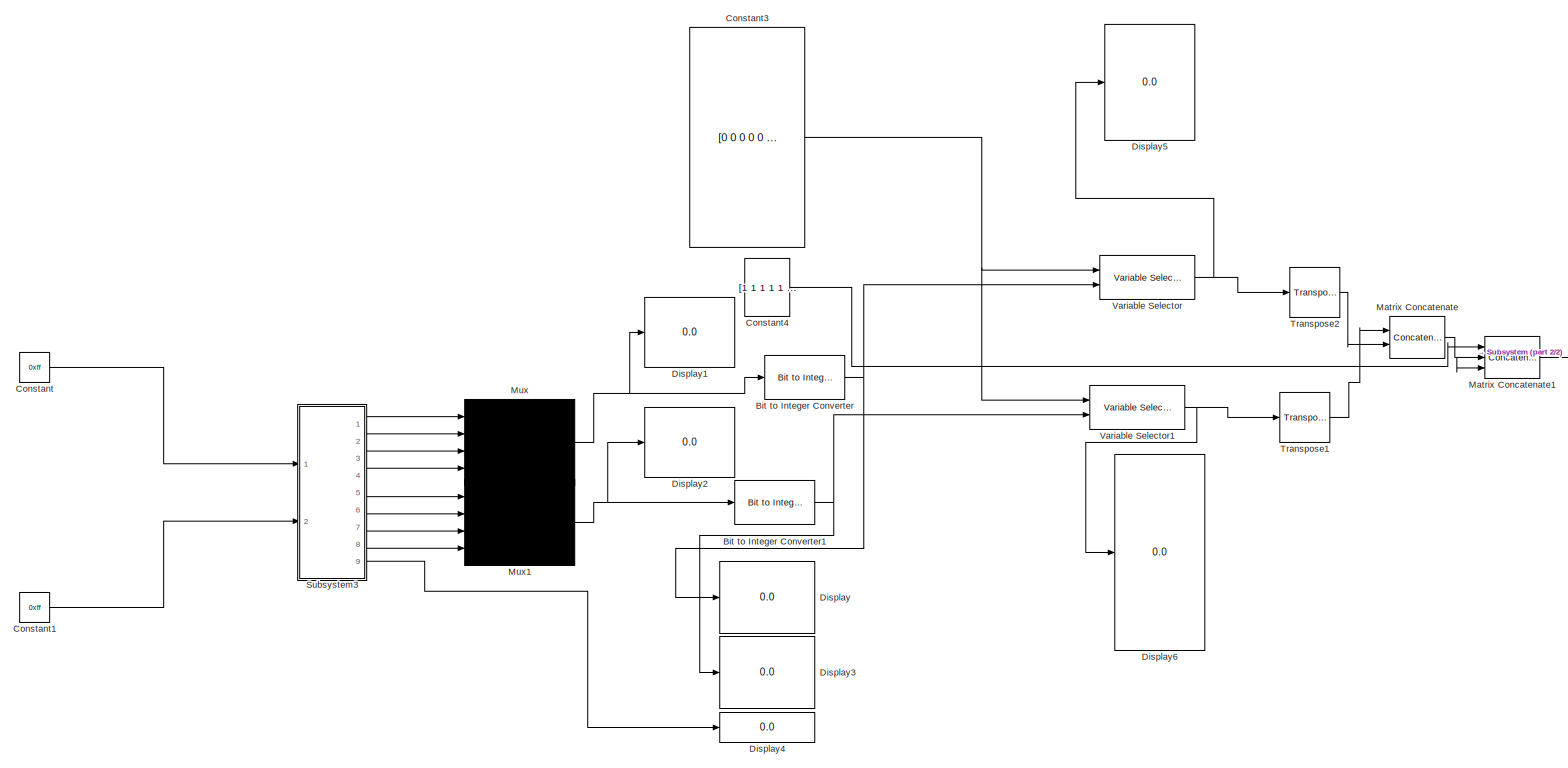
[diagram: root canvas - part 1/2, most of the canvas]
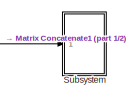
[diagram: root canvas - part 2/2, middle right region]
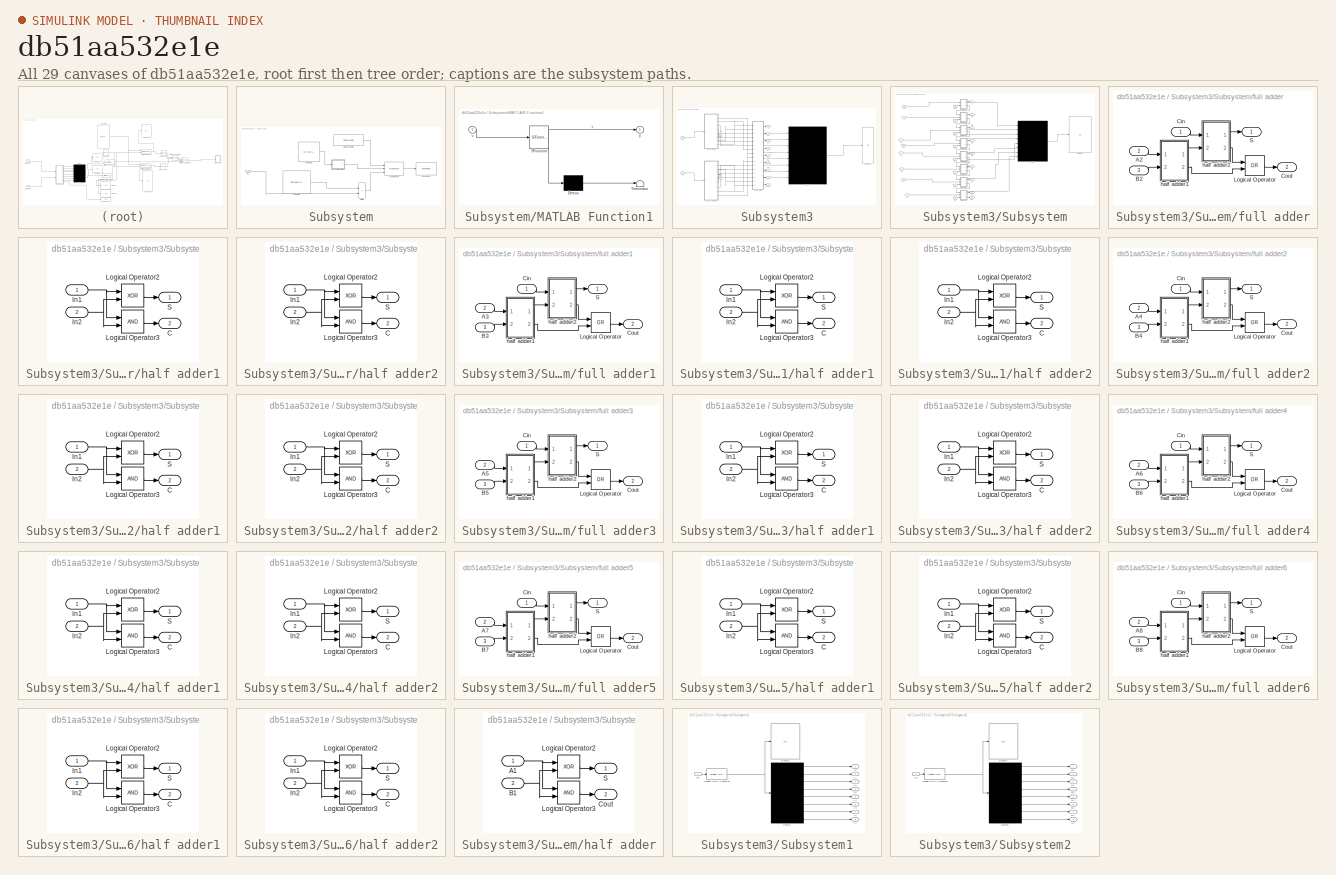
[diagram: thumbnail index - all 29 canvases of the model, root first then tree order]
MODEL slx_db51aa532e1e
KIND model
CONFIG AbsTol = auto
CONFIG EnableMultiTasking = off
CONFIG FixedStep = auto
CONFIG MaxStep = auto
CONFIG MinStep = auto
CONFIG RelTol = 1e-3
CONFIG SampleTimeConstraint = Unconstrained
CONFIG SolverName = VariableStepAuto
CONFIG StartTime = 0.0
CONFIG StopTime = 10.0
BLOCK [Reference] Bit to Integer Converter  REF=simulink/Logic and Bit
Operations/Bit to Integer
Converter
  Ports = [1, 1]
  SourceBlock = simulink/Logic and Bit\nOperations/Bit to Integer\nConverter
  SourceProductBaseCode = SL
  SourceType = Bit to Integer Converter
BLOCK [Reference] Bit to Integer Converter1  REF=simulink/Logic and Bit
Operations/Bit to Integer
Converter
  Ports = [1, 1]
  SourceBlock = simulink/Logic and Bit\nOperations/Bit to Integer\nConverter
  SourceProductBaseCode = SL
  SourceType = Bit to Integer Converter
BLOCK [Constant] Constant
  Value = 0xff
BLOCK [Constant] Constant1
  Value = 0xff
BLOCK [Constant] Constant3
  Value = [0 0 0 0 0 0 1;1 0 0 1 1 1 1;0 0 1 0 0 1 0;0 0 0 0 1 1 0;1 0 0 1 1 0 0;0 1 0 0 1 0 0 ;0 1 0 0 0 0 0;0 0 0 1 1 1 1;0 0 0 0 0 0 0;0 0 0 0 1 0 0;0 0 0 1 0 0 0;1 1 0 0 0 0 0;0 1 1 0 0 0 1;1 0 0 0 0 1 0;0 1 1 0 0 0 0;0 1 1 1 0 0 0]
BLOCK [Constant] Constant4
  Value = [1 1 1 1 1 1 1 1 1 1 1 1 1 1;]
BLOCK [Display] Display
  Decimation = 8
  Ports = [1]
BLOCK [Display] Display1
  Decimation = 1
  Ports = [1]
BLOCK [Display] Display2
  Decimation = 1
  Ports = [1]
BLOCK [Display] Display3
  Decimation = 8
  Ports = [1]
BLOCK [Display] Display4
  Decimation = 1
  Ports = [1]
BLOCK [Display] Display5
  Decimation = 1
  Ports = [1]
BLOCK [Display] Display6
  Decimation = 1
  Ports = [1]
BLOCK [Concatenate] Matrix Concatenate
  Mode = Multidimensional array
  Ports = [2, 1]
BLOCK [Concatenate] Matrix Concatenate1
  ConcatenateDimension = 2
  Mode = Multidimensional array
  NumInputs = 3
  Ports = [3, 1]
BLOCK [Mux] Mux
  DisplayOption = signals
  Ports = [4, 1]
BLOCK [Mux] Mux1
  DisplayOption = signals
  Ports = [4, 1]
BLOCK [SubSystem] Subsystem
  Ports = [1]
  RequestExecContextInheritance = off
BLOCK [Constant] Subsystem/Constant3
  Value = [10 0  30 10; 40 10 10 30; 40 50 10 30; 10 80 30 10;0 50 10 30; 0 10 10 30;10 40 30 10]
  VectorParams1D = off
BLOCK [Constant] Subsystem/Constant5
  Value = 255*ones(14,3)
BLOCK [Reference] Subsystem/Draw Shapes  REF=visiontextngfix/Draw Shapes
  Ports = [3, 1]
  SourceBlock = visiontextngfix/Draw Shapes
  SourceProductBaseCode = VP
  SourceType = Draw Shapes
BLOCK [Reference] Subsystem/Image From File  REF=visionsources/Image From File
  Ports = [0, 1]
  SourceBlock = visionsources/Image From File
  SourceProductBaseCode = VP
  SourceType = Image From File
  Tag = vipblks_nd
BLOCK [Inport] Subsystem/In1
BLOCK [SubSystem] Subsystem/MATLAB Function1
  ErrorFcn = Stateflow.Translate.translate
  PermitHierarchicalResolution = ExplicitOnly
  Ports = [1, 1]
  RequestExecContextInheritance = off
  SFBlockType = MATLAB Function
  TreatAsAtomicUnit = on
BLOCK [Demux] Subsystem/MATLAB Function1/ Demux 
  Outputs = 1
  Ports = [1, 1]
BLOCK [S-Function] Subsystem/MATLAB Function1/ SFunction 
  EnableBusSupport = on
  FunctionName = sf_sfun
  PortCounts = [1 2]
  Ports = [1, 2]
  SFcnIsStateOwnerBlock = off
  SFunctionDeploymentMode = off
  Tag = Stateflow S-Function 1
BLOCK [Terminator] Subsystem/MATLAB Function1/ Terminator 
BLOCK [Inport] Subsystem/MATLAB Function1/u
BLOCK [Outport] Subsystem/MATLAB Function1/y
BLOCK [Product] Subsystem/Multiply
  Ports = [2, 1]
BLOCK [VideoViewer] Subsystem/Video Viewer
  FigPos = [1 814 1536 716]
  Ports = [1]
  ScopeSpecificationString = vipscopes.VideoViewerScopeCfg('CurrentConfiguration', extmgr.ConfigurationSet(extmgr.Configuration('Core','General UI',true),extmgr.Configuration('Core','Source UI',true),extmgr.Configuration('Sources','WiredSimulink',true),extmgr.Configuration('Visuals','Video',true),extmgr.Configuration('Tools','Image Navigation Tools',true,'Magnification',4),extmgr.Configuration('Tools','Image Tool',true),extmg...<+91ch>
  colormapValue = gray(256)
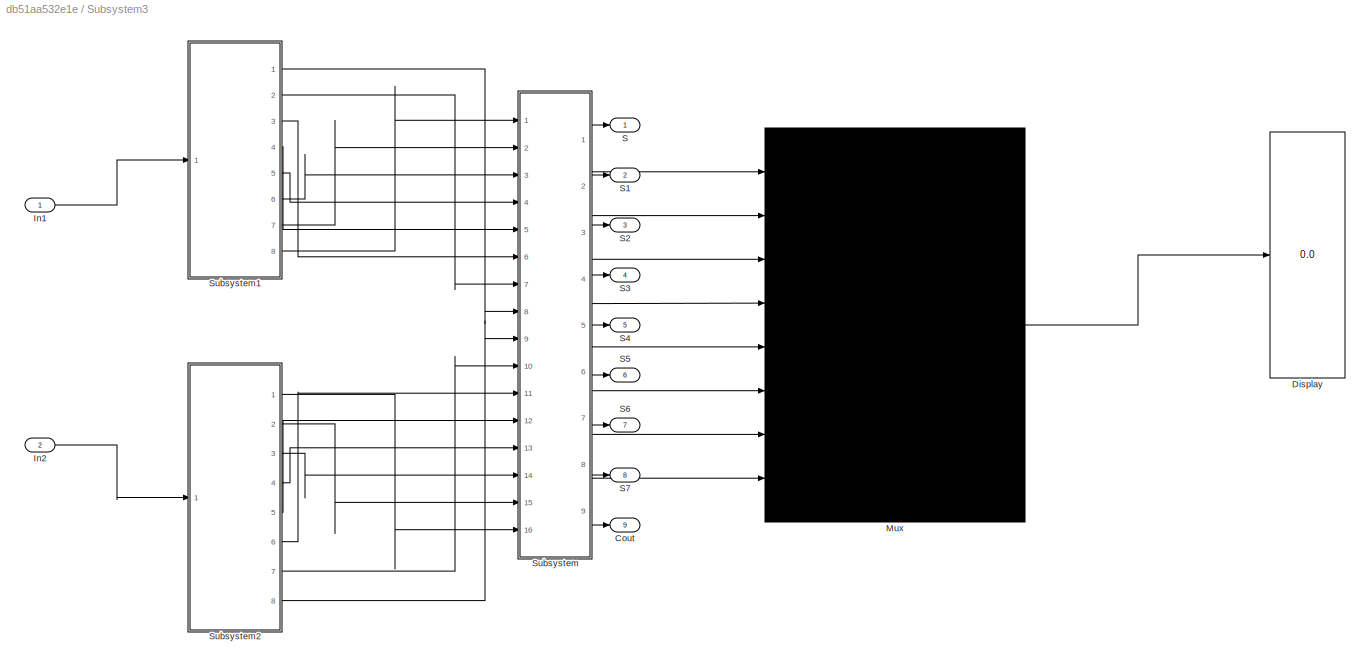
BLOCK [SubSystem] Subsystem3
  Ports = [2, 9]
  RequestExecContextInheritance = off
BLOCK [Outport] Subsystem3/Cout
  Port = 9
BLOCK [Display] Subsystem3/Display
  Decimation = 1
  Ports = [1]
BLOCK [Inport] Subsystem3/In1
BLOCK [Inport] Subsystem3/In2
  Port = 2
BLOCK [Mux] Subsystem3/Mux
  DisplayOption = bar
  Inputs = 8
  Ports = [8, 1]
BLOCK [Outport] Subsystem3/S
BLOCK [Outport] Subsystem3/S1
  Port = 2
BLOCK [Outport] Subsystem3/S2
  Port = 3
BLOCK [Outport] Subsystem3/S3
  Port = 4
BLOCK [Outport] Subsystem3/S4
  Port = 5
BLOCK [Outport] Subsystem3/S5
  Port = 6
BLOCK [Outport] Subsystem3/S6
  Port = 7
BLOCK [Outport] Subsystem3/S7
  Port = 8
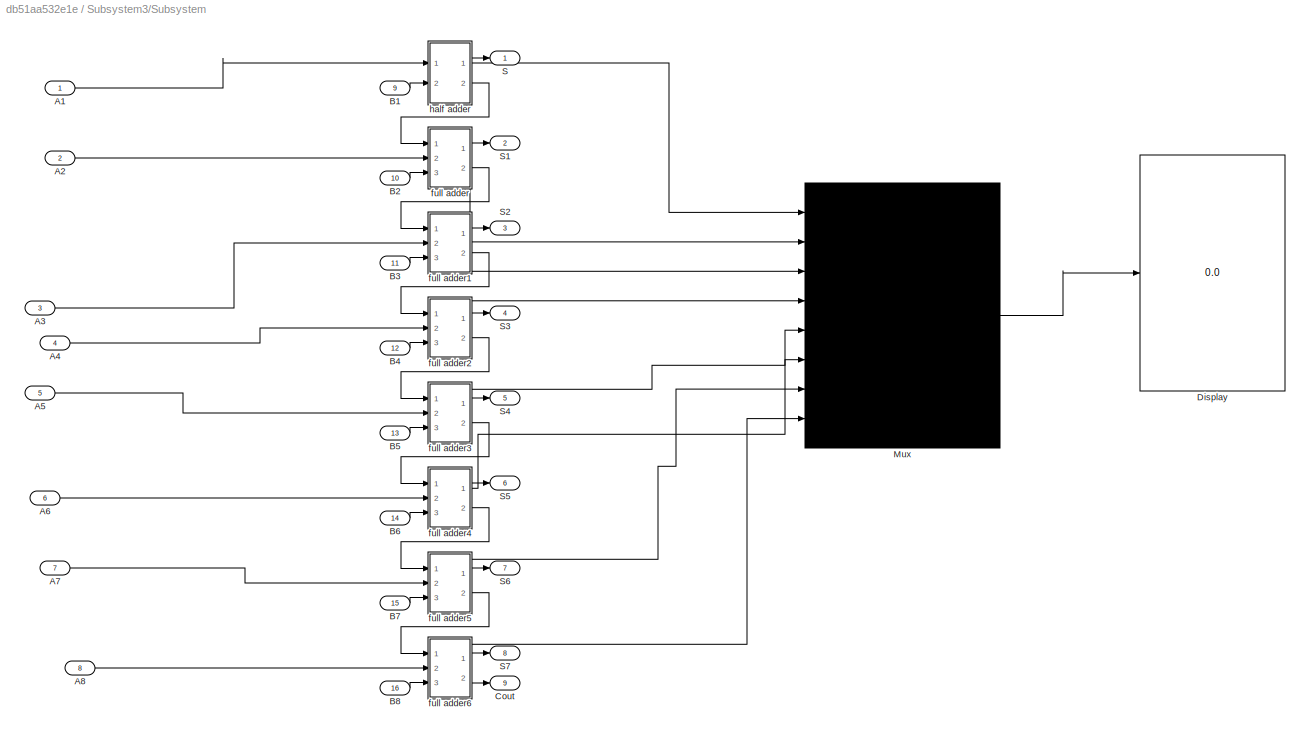
BLOCK [SubSystem] Subsystem3/Subsystem
  Ports = [16, 9]
  RequestExecContextInheritance = off
BLOCK [Inport] Subsystem3/Subsystem/A1
BLOCK [Inport] Subsystem3/Subsystem/A2
  Port = 2
BLOCK [Inport] Subsystem3/Subsystem/A3
  Port = 3
BLOCK [Inport] Subsystem3/Subsystem/A4
  Port = 4
BLOCK [Inport] Subsystem3/Subsystem/A5
  NameLocation = right
  Port = 5
BLOCK [Inport] Subsystem3/Subsystem/A6
  Port = 6
BLOCK [Inport] Subsystem3/Subsystem/A7
  Port = 7
BLOCK [Inport] Subsystem3/Subsystem/A8
  Port = 8
BLOCK [Inport] Subsystem3/Subsystem/B1
  Port = 9
BLOCK [Inport] Subsystem3/Subsystem/B2
  Port = 10
BLOCK [Inport] Subsystem3/Subsystem/B3
  Port = 11
BLOCK [Inport] Subsystem3/Subsystem/B4
  Port = 12
BLOCK [Inport] Subsystem3/Subsystem/B5
  Port = 13
BLOCK [Inport] Subsystem3/Subsystem/B6
  Port = 14
BLOCK [Inport] Subsystem3/Subsystem/B7
  Port = 15
BLOCK [Inport] Subsystem3/Subsystem/B8
  Port = 16
BLOCK [Outport] Subsystem3/Subsystem/Cout
  Port = 9
BLOCK [Display] Subsystem3/Subsystem/Display
  Decimation = 1
  Ports = [1]
BLOCK [Mux] Subsystem3/Subsystem/Mux
  DisplayOption = bar
  Inputs = 8
  Ports = [8, 1]
BLOCK [Outport] Subsystem3/Subsystem/S
BLOCK [Outport] Subsystem3/Subsystem/S1
  Port = 2
BLOCK [Outport] Subsystem3/Subsystem/S2
  Port = 3
BLOCK [Outport] Subsystem3/Subsystem/S3
  Port = 4
BLOCK [Outport] Subsystem3/Subsystem/S4
  Port = 5
BLOCK [Outport] Subsystem3/Subsystem/S5
  Port = 6
BLOCK [Outport] Subsystem3/Subsystem/S6
  Port = 7
BLOCK [Outport] Subsystem3/Subsystem/S7
  Port = 8
BLOCK [SubSystem] Subsystem3/Subsystem/full adder
  Ports = [3, 2]
  RequestExecContextInheritance = off
BLOCK [Inport] Subsystem3/Subsystem/full adder/A2
  Port = 2
BLOCK [Inport] Subsystem3/Subsystem/full adder/B2
  Port = 3
BLOCK [Inport] Subsystem3/Subsystem/full adder/Cin
BLOCK [Outport] Subsystem3/Subsystem/full adder/Cout
  Port = 2
BLOCK [Logic] Subsystem3/Subsystem/full adder/Logical Operator
  AllPortsSameDT = off
  Operator = OR
  OutDataTypeStr = boolean
  Ports = [2, 1]
BLOCK [Outport] Subsystem3/Subsystem/full adder/S
BLOCK [SubSystem] Subsystem3/Subsystem/full adder/half adder1
  Ports = [2, 2]
  RequestExecContextInheritance = off
BLOCK [Outport] Subsystem3/Subsystem/full adder/half adder1/C
  Port = 2
BLOCK [Inport] Subsystem3/Subsystem/full adder/half adder1/In1
BLOCK [Inport] Subsystem3/Subsystem/full adder/half adder1/In2
  Port = 2
BLOCK [Logic] Subsystem3/Subsystem/full adder/half adder1/Logical Operator2
  AllPortsSameDT = off
  Operator = XOR
  OutDataTypeStr = boolean
  Ports = [2, 1]
BLOCK [Logic] Subsystem3/Subsystem/full adder/half adder1/Logical Operator3
  AllPortsSameDT = off
  OutDataTypeStr = boolean
  Ports = [2, 1]
BLOCK [Outport] Subsystem3/Subsystem/full adder/half adder1/S
BLOCK [SubSystem] Subsystem3/Subsystem/full adder/half adder2
  Ports = [2, 2]
  RequestExecContextInheritance = off
BLOCK [Outport] Subsystem3/Subsystem/full adder/half adder2/C
  Port = 2
BLOCK [Inport] Subsystem3/Subsystem/full adder/half adder2/In1
BLOCK [Inport] Subsystem3/Subsystem/full adder/half adder2/In2
  Port = 2
BLOCK [Logic] Subsystem3/Subsystem/full adder/half adder2/Logical Operator2
  AllPortsSameDT = off
  Operator = XOR
  OutDataTypeStr = boolean
  Ports = [2, 1]
BLOCK [Logic] Subsystem3/Subsystem/full adder/half adder2/Logical Operator3
  AllPortsSameDT = off
  OutDataTypeStr = boolean
  Ports = [2, 1]
BLOCK [Outport] Subsystem3/Subsystem/full adder/half adder2/S
BLOCK [SubSystem] Subsystem3/Subsystem/full adder1
  Ports = [3, 2]
  RequestExecContextInheritance = off
BLOCK [Inport] Subsystem3/Subsystem/full adder1/A3
  Port = 2
BLOCK [Inport] Subsystem3/Subsystem/full adder1/B3
  Port = 3
BLOCK [Inport] Subsystem3/Subsystem/full adder1/Cin
BLOCK [Outport] Subsystem3/Subsystem/full adder1/Cout
  Port = 2
BLOCK [Logic] Subsystem3/Subsystem/full adder1/Logical Operator
  AllPortsSameDT = off
  Operator = OR
  OutDataTypeStr = boolean
  Ports = [2, 1]
BLOCK [Outport] Subsystem3/Subsystem/full adder1/S
BLOCK [SubSystem] Subsystem3/Subsystem/full adder1/half adder1
  Ports = [2, 2]
  RequestExecContextInheritance = off
BLOCK [Outport] Subsystem3/Subsystem/full adder1/half adder1/C
  Port = 2
BLOCK [Inport] Subsystem3/Subsystem/full adder1/half adder1/In1
BLOCK [Inport] Subsystem3/Subsystem/full adder1/half adder1/In2
  Port = 2
BLOCK [Logic] Subsystem3/Subsystem/full adder1/half adder1/Logical Operator2
  AllPortsSameDT = off
  Operator = XOR
  OutDataTypeStr = boolean
  Ports = [2, 1]
BLOCK [Logic] Subsystem3/Subsystem/full adder1/half adder1/Logical Operator3
  AllPortsSameDT = off
  OutDataTypeStr = boolean
  Ports = [2, 1]
BLOCK [Outport] Subsystem3/Subsystem/full adder1/half adder1/S
BLOCK [SubSystem] Subsystem3/Subsystem/full adder1/half adder2
  Ports = [2, 2]
  RequestExecContextInheritance = off
BLOCK [Outport] Subsystem3/Subsystem/full adder1/half adder2/C
  Port = 2
BLOCK [Inport] Subsystem3/Subsystem/full adder1/half adder2/In1
BLOCK [Inport] Subsystem3/Subsystem/full adder1/half adder2/In2
  Port = 2
BLOCK [Logic] Subsystem3/Subsystem/full adder1/half adder2/Logical Operator2
  AllPortsSameDT = off
  Operator = XOR
  OutDataTypeStr = boolean
  Ports = [2, 1]
BLOCK [Logic] Subsystem3/Subsystem/full adder1/half adder2/Logical Operator3
  AllPortsSameDT = off
  OutDataTypeStr = boolean
  Ports = [2, 1]
BLOCK [Outport] Subsystem3/Subsystem/full adder1/half adder2/S
BLOCK [SubSystem] Subsystem3/Subsystem/full adder2
  Ports = [3, 2]
  RequestExecContextInheritance = off
BLOCK [Inport] Subsystem3/Subsystem/full adder2/A4
  Port = 2
BLOCK [Inport] Subsystem3/Subsystem/full adder2/B4
  Port = 3
BLOCK [Inport] Subsystem3/Subsystem/full adder2/Cin
BLOCK [Outport] Subsystem3/Subsystem/full adder2/Cout
  Port = 2
BLOCK [Logic] Subsystem3/Subsystem/full adder2/Logical Operator
  AllPortsSameDT = off
  Operator = OR
  OutDataTypeStr = boolean
  Ports = [2, 1]
BLOCK [Outport] Subsystem3/Subsystem/full adder2/S
BLOCK [SubSystem] Subsystem3/Subsystem/full adder2/half adder1
  Ports = [2, 2]
  RequestExecContextInheritance = off
BLOCK [Outport] Subsystem3/Subsystem/full adder2/half adder1/C
  Port = 2
BLOCK [Inport] Subsystem3/Subsystem/full adder2/half adder1/In1
BLOCK [Inport] Subsystem3/Subsystem/full adder2/half adder1/In2
  Port = 2
BLOCK [Logic] Subsystem3/Subsystem/full adder2/half adder1/Logical Operator2
  AllPortsSameDT = off
  Operator = XOR
  OutDataTypeStr = boolean
  Ports = [2, 1]
BLOCK [Logic] Subsystem3/Subsystem/full adder2/half adder1/Logical Operator3
  AllPortsSameDT = off
  OutDataTypeStr = boolean
  Ports = [2, 1]
BLOCK [Outport] Subsystem3/Subsystem/full adder2/half adder1/S
BLOCK [SubSystem] Subsystem3/Subsystem/full adder2/half adder2
  Ports = [2, 2]
  RequestExecContextInheritance = off
BLOCK [Outport] Subsystem3/Subsystem/full adder2/half adder2/C
  Port = 2
BLOCK [Inport] Subsystem3/Subsystem/full adder2/half adder2/In1
BLOCK [Inport] Subsystem3/Subsystem/full adder2/half adder2/In2
  Port = 2
BLOCK [Logic] Subsystem3/Subsystem/full adder2/half adder2/Logical Operator2
  AllPortsSameDT = off
  Operator = XOR
  OutDataTypeStr = boolean
  Ports = [2, 1]
BLOCK [Logic] Subsystem3/Subsystem/full adder2/half adder2/Logical Operator3
  AllPortsSameDT = off
  OutDataTypeStr = boolean
  Ports = [2, 1]
BLOCK [Outport] Subsystem3/Subsystem/full adder2/half adder2/S
BLOCK [SubSystem] Subsystem3/Subsystem/full adder3
  Ports = [3, 2]
  RequestExecContextInheritance = off
BLOCK [Inport] Subsystem3/Subsystem/full adder3/A5
  Port = 2
BLOCK [Inport] Subsystem3/Subsystem/full adder3/B5
  Port = 3
BLOCK [Inport] Subsystem3/Subsystem/full adder3/Cin
BLOCK [Outport] Subsystem3/Subsystem/full adder3/Cout
  Port = 2
BLOCK [Logic] Subsystem3/Subsystem/full adder3/Logical Operator
  AllPortsSameDT = off
  Operator = OR
  OutDataTypeStr = boolean
  Ports = [2, 1]
BLOCK [Outport] Subsystem3/Subsystem/full adder3/S
BLOCK [SubSystem] Subsystem3/Subsystem/full adder3/half adder1
  Ports = [2, 2]
  RequestExecContextInheritance = off
BLOCK [Outport] Subsystem3/Subsystem/full adder3/half adder1/C
  Port = 2
BLOCK [Inport] Subsystem3/Subsystem/full adder3/half adder1/In1
BLOCK [Inport] Subsystem3/Subsystem/full adder3/half adder1/In2
  Port = 2
BLOCK [Logic] Subsystem3/Subsystem/full adder3/half adder1/Logical Operator2
  AllPortsSameDT = off
  Operator = XOR
  OutDataTypeStr = boolean
  Ports = [2, 1]
BLOCK [Logic] Subsystem3/Subsystem/full adder3/half adder1/Logical Operator3
  AllPortsSameDT = off
  OutDataTypeStr = boolean
  Ports = [2, 1]
BLOCK [Outport] Subsystem3/Subsystem/full adder3/half adder1/S
BLOCK [SubSystem] Subsystem3/Subsystem/full adder3/half adder2
  Ports = [2, 2]
  RequestExecContextInheritance = off
BLOCK [Outport] Subsystem3/Subsystem/full adder3/half adder2/C
  Port = 2
BLOCK [Inport] Subsystem3/Subsystem/full adder3/half adder2/In1
BLOCK [Inport] Subsystem3/Subsystem/full adder3/half adder2/In2
  Port = 2
BLOCK [Logic] Subsystem3/Subsystem/full adder3/half adder2/Logical Operator2
  AllPortsSameDT = off
  Operator = XOR
  OutDataTypeStr = boolean
  Ports = [2, 1]
BLOCK [Logic] Subsystem3/Subsystem/full adder3/half adder2/Logical Operator3
  AllPortsSameDT = off
  OutDataTypeStr = boolean
  Ports = [2, 1]
BLOCK [Outport] Subsystem3/Subsystem/full adder3/half adder2/S
BLOCK [SubSystem] Subsystem3/Subsystem/full adder4
  Ports = [3, 2]
  RequestExecContextInheritance = off
BLOCK [Inport] Subsystem3/Subsystem/full adder4/A6
  Port = 2
BLOCK [Inport] Subsystem3/Subsystem/full adder4/B6
  Port = 3
BLOCK [Inport] Subsystem3/Subsystem/full adder4/Cin
BLOCK [Outport] Subsystem3/Subsystem/full adder4/Cout
  Port = 2
BLOCK [Logic] Subsystem3/Subsystem/full adder4/Logical Operator
  AllPortsSameDT = off
  Operator = OR
  OutDataTypeStr = boolean
  Ports = [2, 1]
BLOCK [Outport] Subsystem3/Subsystem/full adder4/S
BLOCK [SubSystem] Subsystem3/Subsystem/full adder4/half adder1
  Ports = [2, 2]
  RequestExecContextInheritance = off
BLOCK [Outport] Subsystem3/Subsystem/full adder4/half adder1/C
  Port = 2
BLOCK [Inport] Subsystem3/Subsystem/full adder4/half adder1/In1
BLOCK [Inport] Subsystem3/Subsystem/full adder4/half adder1/In2
  Port = 2
BLOCK [Logic] Subsystem3/Subsystem/full adder4/half adder1/Logical Operator2
  AllPortsSameDT = off
  Operator = XOR
  OutDataTypeStr = boolean
  Ports = [2, 1]
BLOCK [Logic] Subsystem3/Subsystem/full adder4/half adder1/Logical Operator3
  AllPortsSameDT = off
  OutDataTypeStr = boolean
  Ports = [2, 1]
BLOCK [Outport] Subsystem3/Subsystem/full adder4/half adder1/S
BLOCK [SubSystem] Subsystem3/Subsystem/full adder4/half adder2
  Ports = [2, 2]
  RequestExecContextInheritance = off
BLOCK [Outport] Subsystem3/Subsystem/full adder4/half adder2/C
  Port = 2
BLOCK [Inport] Subsystem3/Subsystem/full adder4/half adder2/In1
BLOCK [Inport] Subsystem3/Subsystem/full adder4/half adder2/In2
  Port = 2
BLOCK [Logic] Subsystem3/Subsystem/full adder4/half adder2/Logical Operator2
  AllPortsSameDT = off
  Operator = XOR
  OutDataTypeStr = boolean
  Ports = [2, 1]
BLOCK [Logic] Subsystem3/Subsystem/full adder4/half adder2/Logical Operator3
  AllPortsSameDT = off
  OutDataTypeStr = boolean
  Ports = [2, 1]
BLOCK [Outport] Subsystem3/Subsystem/full adder4/half adder2/S
BLOCK [SubSystem] Subsystem3/Subsystem/full adder5
  Ports = [3, 2]
  RequestExecContextInheritance = off
BLOCK [Inport] Subsystem3/Subsystem/full adder5/A7
  Port = 2
BLOCK [Inport] Subsystem3/Subsystem/full adder5/B7
  Port = 3
BLOCK [Inport] Subsystem3/Subsystem/full adder5/Cin
BLOCK [Outport] Subsystem3/Subsystem/full adder5/Cout
  Port = 2
BLOCK [Logic] Subsystem3/Subsystem/full adder5/Logical Operator
  AllPortsSameDT = off
  Operator = OR
  OutDataTypeStr = boolean
  Ports = [2, 1]
BLOCK [Outport] Subsystem3/Subsystem/full adder5/S
BLOCK [SubSystem] Subsystem3/Subsystem/full adder5/half adder1
  Ports = [2, 2]
  RequestExecContextInheritance = off
BLOCK [Outport] Subsystem3/Subsystem/full adder5/half adder1/C
  Port = 2
BLOCK [Inport] Subsystem3/Subsystem/full adder5/half adder1/In1
BLOCK [Inport] Subsystem3/Subsystem/full adder5/half adder1/In2
  Port = 2
BLOCK [Logic] Subsystem3/Subsystem/full adder5/half adder1/Logical Operator2
  AllPortsSameDT = off
  Operator = XOR
  OutDataTypeStr = boolean
  Ports = [2, 1]
BLOCK [Logic] Subsystem3/Subsystem/full adder5/half adder1/Logical Operator3
  AllPortsSameDT = off
  OutDataTypeStr = boolean
  Ports = [2, 1]
BLOCK [Outport] Subsystem3/Subsystem/full adder5/half adder1/S
BLOCK [SubSystem] Subsystem3/Subsystem/full adder5/half adder2
  Ports = [2, 2]
  RequestExecContextInheritance = off
BLOCK [Outport] Subsystem3/Subsystem/full adder5/half adder2/C
  Port = 2
BLOCK [Inport] Subsystem3/Subsystem/full adder5/half adder2/In1
BLOCK [Inport] Subsystem3/Subsystem/full adder5/half adder2/In2
  Port = 2
BLOCK [Logic] Subsystem3/Subsystem/full adder5/half adder2/Logical Operator2
  AllPortsSameDT = off
  Operator = XOR
  OutDataTypeStr = boolean
  Ports = [2, 1]
BLOCK [Logic] Subsystem3/Subsystem/full adder5/half adder2/Logical Operator3
  AllPortsSameDT = off
  OutDataTypeStr = boolean
  Ports = [2, 1]
BLOCK [Outport] Subsystem3/Subsystem/full adder5/half adder2/S
BLOCK [SubSystem] Subsystem3/Subsystem/full adder6
  Ports = [3, 2]
  RequestExecContextInheritance = off
BLOCK [Inport] Subsystem3/Subsystem/full adder6/A8
  Port = 2
BLOCK [Inport] Subsystem3/Subsystem/full adder6/B8
  Port = 3
BLOCK [Inport] Subsystem3/Subsystem/full adder6/Cin
BLOCK [Outport] Subsystem3/Subsystem/full adder6/Cout
  Port = 2
BLOCK [Logic] Subsystem3/Subsystem/full adder6/Logical Operator
  AllPortsSameDT = off
  Operator = OR
  OutDataTypeStr = boolean
  Ports = [2, 1]
BLOCK [Outport] Subsystem3/Subsystem/full adder6/S
BLOCK [SubSystem] Subsystem3/Subsystem/full adder6/half adder1
  Ports = [2, 2]
  RequestExecContextInheritance = off
BLOCK [Outport] Subsystem3/Subsystem/full adder6/half adder1/C
  Port = 2
BLOCK [Inport] Subsystem3/Subsystem/full adder6/half adder1/In1
BLOCK [Inport] Subsystem3/Subsystem/full adder6/half adder1/In2
  Port = 2
BLOCK [Logic] Subsystem3/Subsystem/full adder6/half adder1/Logical Operator2
  AllPortsSameDT = off
  Operator = XOR
  OutDataTypeStr = boolean
  Ports = [2, 1]
BLOCK [Logic] Subsystem3/Subsystem/full adder6/half adder1/Logical Operator3
  AllPortsSameDT = off
  OutDataTypeStr = boolean
  Ports = [2, 1]
BLOCK [Outport] Subsystem3/Subsystem/full adder6/half adder1/S
BLOCK [SubSystem] Subsystem3/Subsystem/full adder6/half adder2
  Ports = [2, 2]
  RequestExecContextInheritance = off
BLOCK [Outport] Subsystem3/Subsystem/full adder6/half adder2/C
  Port = 2
BLOCK [Inport] Subsystem3/Subsystem/full adder6/half adder2/In1
BLOCK [Inport] Subsystem3/Subsystem/full adder6/half adder2/In2
  Port = 2
BLOCK [Logic] Subsystem3/Subsystem/full adder6/half adder2/Logical Operator2
  AllPortsSameDT = off
  Operator = XOR
  OutDataTypeStr = boolean
  Ports = [2, 1]
BLOCK [Logic] Subsystem3/Subsystem/full adder6/half adder2/Logical Operator3
  AllPortsSameDT = off
  OutDataTypeStr = boolean
  Ports = [2, 1]
BLOCK [Outport] Subsystem3/Subsystem/full adder6/half adder2/S
BLOCK [SubSystem] Subsystem3/Subsystem/half adder
  Ports = [2, 2]
  RequestExecContextInheritance = off
BLOCK [Inport] Subsystem3/Subsystem/half adder/A1
BLOCK [Inport] Subsystem3/Subsystem/half adder/B1
  Port = 2
BLOCK [Outport] Subsystem3/Subsystem/half adder/Cout
  Port = 2
BLOCK [Logic] Subsystem3/Subsystem/half adder/Logical Operator2
  AllPortsSameDT = off
  Operator = XOR
  OutDataTypeStr = boolean
  Ports = [2, 1]
BLOCK [Logic] Subsystem3/Subsystem/half adder/Logical Operator3
  AllPortsSameDT = off
  OutDataTypeStr = boolean
  Ports = [2, 1]
BLOCK [Outport] Subsystem3/Subsystem/half adder/S
BLOCK [SubSystem] Subsystem3/Subsystem1
  Ports = [1, 8]
  RequestExecContextInheritance = off
BLOCK [Outport] Subsystem3/Subsystem1/A1
  Port = 8
BLOCK [Outport] Subsystem3/Subsystem1/A2
  Port = 7
BLOCK [Outport] Subsystem3/Subsystem1/A3
  Port = 6
BLOCK [Outport] Subsystem3/Subsystem1/A4
  Port = 5
BLOCK [Outport] Subsystem3/Subsystem1/A5
  Port = 4
BLOCK [Outport] Subsystem3/Subsystem1/A6
  Port = 3
BLOCK [Outport] Subsystem3/Subsystem1/A7
  Port = 2
BLOCK [Outport] Subsystem3/Subsystem1/A8
BLOCK [Demux] Subsystem3/Subsystem1/Demux
  Outputs = 8
  Ports = [1, 8]
BLOCK [Display] Subsystem3/Subsystem1/Display
  Decimation = 1
  Ports = [1]
BLOCK [Inport] Subsystem3/Subsystem1/In1
BLOCK [Reference] Subsystem3/Subsystem1/Integer to Bit Converter  REF=simulink/Logic and Bit
Operations/Integer to Bit
Converter
  Ports = [1, 1]
  SourceBlock = simulink/Logic and Bit\nOperations/Integer to Bit\nConverter
  SourceProductBaseCode = SL
  SourceType = Integer to Bit Converter
BLOCK [SubSystem] Subsystem3/Subsystem2
  Ports = [1, 8]
  RequestExecContextInheritance = off
BLOCK [Outport] Subsystem3/Subsystem2/B1
BLOCK [Outport] Subsystem3/Subsystem2/B2
  Port = 2
BLOCK [Outport] Subsystem3/Subsystem2/B3
  Port = 3
BLOCK [Outport] Subsystem3/Subsystem2/B4
  Port = 4
BLOCK [Outport] Subsystem3/Subsystem2/B5
  Port = 5
BLOCK [Outport] Subsystem3/Subsystem2/B6
  Port = 6
BLOCK [Outport] Subsystem3/Subsystem2/B7
  Port = 7
BLOCK [Outport] Subsystem3/Subsystem2/B8
  Port = 8
BLOCK [Demux] Subsystem3/Subsystem2/Demux
  Outputs = 8
  Ports = [1, 8]
BLOCK [Display] Subsystem3/Subsystem2/Display
  Decimation = 1
  Ports = [1]
BLOCK [Inport] Subsystem3/Subsystem2/In1
BLOCK [Reference] Subsystem3/Subsystem2/Integer to Bit Converter  REF=simulink/Logic and Bit
Operations/Integer to Bit
Converter
  Ports = [1, 1]
  SourceBlock = simulink/Logic and Bit\nOperations/Integer to Bit\nConverter
  SourceProductBaseCode = SL
  SourceType = Integer to Bit Converter
BLOCK [Reference] Transpose1  REF=matrix_library/Transpose
  Ports = [1, 1]
  SourceBlock = matrix_library/Transpose
  SourceProductBaseCode = SL
  SourceType = Transpose
BLOCK [Reference] Transpose2  REF=matrix_library/Transpose
  Ports = [1, 1]
  SourceBlock = matrix_library/Transpose
  SourceProductBaseCode = SL
  SourceType = Transpose
BLOCK [Reference] Variable Selector  REF=dspindex/Variable
Selector
  Ports = [2, 1]
  SourceBlock = dspindex/Variable\nSelector
  SourceProductBaseCode = DS
  SourceType = Variable Selector
BLOCK [Reference] Variable Selector1  REF=dspindex/Variable
Selector
  Ports = [2, 1]
  SourceBlock = dspindex/Variable\nSelector
  SourceProductBaseCode = DS
  SourceType = Variable Selector
NET Bit to Integer Converter1:1 -> Display3:1, Variable Selector1:2
NET Bit to Integer Converter:1 -> Display:1, Variable Selector:2
LINE Constant1:1 -> Subsystem3:2
NET Constant3:1 -> Variable Selector1:1, Variable Selector:1
LINE Constant4:1 -> Matrix Concatenate1:1
LINE Constant:1 -> Subsystem3:1
LINE Matrix Concatenate1:1 -> Subsystem:1
NET Matrix Concatenate:1 -> Matrix Concatenate1:2, Matrix Concatenate1:3
NET Mux1:1 -> Bit to Integer Converter1:1, Display2:1
NET Mux:1 -> Bit to Integer Converter:1, Display1:1
LINE Subsystem/Constant3:1 -> Subsystem/MATLAB Function1:1
LINE Subsystem/Constant5:1 -> Subsystem/Multiply:1
LINE Subsystem/Draw Shapes:1 -> Subsystem/Video Viewer:1
LINE Subsystem/Image From File:1 -> Subsystem/Draw Shapes:1
LINE Subsystem/In1:1 -> Subsystem/Multiply:2
LINE Subsystem/MATLAB Function1:1 -> Subsystem/Draw Shapes:2
LINE Subsystem/Multiply:1 -> Subsystem/Draw Shapes:3
LINE Subsystem3/In1:1 -> Subsystem3/Subsystem1:1
LINE Subsystem3/In2:1 -> Subsystem3/Subsystem2:1
LINE Subsystem3/Mux:1 -> Subsystem3/Display:1
LINE Subsystem3/Subsystem/A1:1 -> Subsystem3/Subsystem/half adder:1
LINE Subsystem3/Subsystem/A2:1 -> Subsystem3/Subsystem/full adder:2
LINE Subsystem3/Subsystem/A3:1 -> Subsystem3/Subsystem/full adder1:2
LINE Subsystem3/Subsystem/A4:1 -> Subsystem3/Subsystem/full adder2:2
LINE Subsystem3/Subsystem/A5:1 -> Subsystem3/Subsystem/full adder3:2
LINE Subsystem3/Subsystem/A6:1 -> Subsystem3/Subsystem/full adder4:2
LINE Subsystem3/Subsystem/A7:1 -> Subsystem3/Subsystem/full adder5:2
LINE Subsystem3/Subsystem/A8:1 -> Subsystem3/Subsystem/full adder6:2
LINE Subsystem3/Subsystem/B1:1 -> Subsystem3/Subsystem/half adder:2
LINE Subsystem3/Subsystem/B2:1 -> Subsystem3/Subsystem/full adder:3
LINE Subsystem3/Subsystem/B3:1 -> Subsystem3/Subsystem/full adder1:3
LINE Subsystem3/Subsystem/B4:1 -> Subsystem3/Subsystem/full adder2:3
LINE Subsystem3/Subsystem/B5:1 -> Subsystem3/Subsystem/full adder3:3
LINE Subsystem3/Subsystem/B6:1 -> Subsystem3/Subsystem/full adder4:3
LINE Subsystem3/Subsystem/B7:1 -> Subsystem3/Subsystem/full adder5:3
LINE Subsystem3/Subsystem/B8:1 -> Subsystem3/Subsystem/full adder6:3
LINE Subsystem3/Subsystem/Mux:1 -> Subsystem3/Subsystem/Display:1
LINE Subsystem3/Subsystem/full adder/A2:1 -> Subsystem3/Subsystem/full adder/half adder1:1
LINE Subsystem3/Subsystem/full adder/B2:1 -> Subsystem3/Subsystem/full adder/half adder1:2
LINE Subsystem3/Subsystem/full adder/Cin:1 -> Subsystem3/Subsystem/full adder/half adder2:1
LINE Subsystem3/Subsystem/full adder/Logical Operator:1 -> Subsystem3/Subsystem/full adder/Cout:1
NET Subsystem3/Subsystem/full adder/half adder1/In1:1 -> Subsystem3/Subsystem/full adder/half adder1/Logical Operator2:1, Subsystem3/Subsystem/full adder/half adder1/Logical Operator3:1
NET Subsystem3/Subsystem/full adder/half adder1/In2:1 -> Subsystem3/Subsystem/full adder/half adder1/Logical Operator2:2, Subsystem3/Subsystem/full adder/half adder1/Logical Operator3:2
LINE Subsystem3/Subsystem/full adder/half adder1/Logical Operator2:1 -> Subsystem3/Subsystem/full adder/half adder1/S:1
LINE Subsystem3/Subsystem/full adder/half adder1/Logical Operator3:1 -> Subsystem3/Subsystem/full adder/half adder1/C:1
LINE Subsystem3/Subsystem/full adder/half adder1:1 -> Subsystem3/Subsystem/full adder/half adder2:2
LINE Subsystem3/Subsystem/full adder/half adder1:2 -> Subsystem3/Subsystem/full adder/Logical Operator:2
NET Subsystem3/Subsystem/full adder/half adder2/In1:1 -> Subsystem3/Subsystem/full adder/half adder2/Logical Operator2:1, Subsystem3/Subsystem/full adder/half adder2/Logical Operator3:1
NET Subsystem3/Subsystem/full adder/half adder2/In2:1 -> Subsystem3/Subsystem/full adder/half adder2/Logical Operator2:2, Subsystem3/Subsystem/full adder/half adder2/Logical Operator3:2
LINE Subsystem3/Subsystem/full adder/half adder2/Logical Operator2:1 -> Subsystem3/Subsystem/full adder/half adder2/S:1
LINE Subsystem3/Subsystem/full adder/half adder2/Logical Operator3:1 -> Subsystem3/Subsystem/full adder/half adder2/C:1
LINE Subsystem3/Subsystem/full adder/half adder2:1 -> Subsystem3/Subsystem/full adder/S:1
LINE Subsystem3/Subsystem/full adder/half adder2:2 -> Subsystem3/Subsystem/full adder/Logical Operator:1
LINE Subsystem3/Subsystem/full adder1/A3:1 -> Subsystem3/Subsystem/full adder1/half adder1:1
LINE Subsystem3/Subsystem/full adder1/B3:1 -> Subsystem3/Subsystem/full adder1/half adder1:2
LINE Subsystem3/Subsystem/full adder1/Cin:1 -> Subsystem3/Subsystem/full adder1/half adder2:1
LINE Subsystem3/Subsystem/full adder1/Logical Operator:1 -> Subsystem3/Subsystem/full adder1/Cout:1
NET Subsystem3/Subsystem/full adder1/half adder1/In1:1 -> Subsystem3/Subsystem/full adder1/half adder1/Logical Operator2:1, Subsystem3/Subsystem/full adder1/half adder1/Logical Operator3:1
NET Subsystem3/Subsystem/full adder1/half adder1/In2:1 -> Subsystem3/Subsystem/full adder1/half adder1/Logical Operator2:2, Subsystem3/Subsystem/full adder1/half adder1/Logical Operator3:2
LINE Subsystem3/Subsystem/full adder1/half adder1/Logical Operator2:1 -> Subsystem3/Subsystem/full adder1/half adder1/S:1
LINE Subsystem3/Subsystem/full adder1/half adder1/Logical Operator3:1 -> Subsystem3/Subsystem/full adder1/half adder1/C:1
LINE Subsystem3/Subsystem/full adder1/half adder1:1 -> Subsystem3/Subsystem/full adder1/half adder2:2
LINE Subsystem3/Subsystem/full adder1/half adder1:2 -> Subsystem3/Subsystem/full adder1/Logical Operator:2
NET Subsystem3/Subsystem/full adder1/half adder2/In1:1 -> Subsystem3/Subsystem/full adder1/half adder2/Logical Operator2:1, Subsystem3/Subsystem/full adder1/half adder2/Logical Operator3:1
NET Subsystem3/Subsystem/full adder1/half adder2/In2:1 -> Subsystem3/Subsystem/full adder1/half adder2/Logical Operator2:2, Subsystem3/Subsystem/full adder1/half adder2/Logical Operator3:2
LINE Subsystem3/Subsystem/full adder1/half adder2/Logical Operator2:1 -> Subsystem3/Subsystem/full adder1/half adder2/S:1
LINE Subsystem3/Subsystem/full adder1/half adder2/Logical Operator3:1 -> Subsystem3/Subsystem/full adder1/half adder2/C:1
LINE Subsystem3/Subsystem/full adder1/half adder2:1 -> Subsystem3/Subsystem/full adder1/S:1
LINE Subsystem3/Subsystem/full adder1/half adder2:2 -> Subsystem3/Subsystem/full adder1/Logical Operator:1
NET Subsystem3/Subsystem/full adder1:1 -> Subsystem3/Subsystem/Mux:3, Subsystem3/Subsystem/S2:1
LINE Subsystem3/Subsystem/full adder1:2 -> Subsystem3/Subsystem/full adder2:1
LINE Subsystem3/Subsystem/full adder2/A4:1 -> Subsystem3/Subsystem/full adder2/half adder1:1
LINE Subsystem3/Subsystem/full adder2/B4:1 -> Subsystem3/Subsystem/full adder2/half adder1:2
LINE Subsystem3/Subsystem/full adder2/Cin:1 -> Subsystem3/Subsystem/full adder2/half adder2:1
LINE Subsystem3/Subsystem/full adder2/Logical Operator:1 -> Subsystem3/Subsystem/full adder2/Cout:1
NET Subsystem3/Subsystem/full adder2/half adder1/In1:1 -> Subsystem3/Subsystem/full adder2/half adder1/Logical Operator2:1, Subsystem3/Subsystem/full adder2/half adder1/Logical Operator3:1
NET Subsystem3/Subsystem/full adder2/half adder1/In2:1 -> Subsystem3/Subsystem/full adder2/half adder1/Logical Operator2:2, Subsystem3/Subsystem/full adder2/half adder1/Logical Operator3:2
LINE Subsystem3/Subsystem/full adder2/half adder1/Logical Operator2:1 -> Subsystem3/Subsystem/full adder2/half adder1/S:1
LINE Subsystem3/Subsystem/full adder2/half adder1/Logical Operator3:1 -> Subsystem3/Subsystem/full adder2/half adder1/C:1
LINE Subsystem3/Subsystem/full adder2/half adder1:1 -> Subsystem3/Subsystem/full adder2/half adder2:2
LINE Subsystem3/Subsystem/full adder2/half adder1:2 -> Subsystem3/Subsystem/full adder2/Logical Operator:2
NET Subsystem3/Subsystem/full adder2/half adder2/In1:1 -> Subsystem3/Subsystem/full adder2/half adder2/Logical Operator2:1, Subsystem3/Subsystem/full adder2/half adder2/Logical Operator3:1
NET Subsystem3/Subsystem/full adder2/half adder2/In2:1 -> Subsystem3/Subsystem/full adder2/half adder2/Logical Operator2:2, Subsystem3/Subsystem/full adder2/half adder2/Logical Operator3:2
LINE Subsystem3/Subsystem/full adder2/half adder2/Logical Operator2:1 -> Subsystem3/Subsystem/full adder2/half adder2/S:1
LINE Subsystem3/Subsystem/full adder2/half adder2/Logical Operator3:1 -> Subsystem3/Subsystem/full adder2/half adder2/C:1
LINE Subsystem3/Subsystem/full adder2/half adder2:1 -> Subsystem3/Subsystem/full adder2/S:1
LINE Subsystem3/Subsystem/full adder2/half adder2:2 -> Subsystem3/Subsystem/full adder2/Logical Operator:1
NET Subsystem3/Subsystem/full adder2:1 -> Subsystem3/Subsystem/Mux:4, Subsystem3/Subsystem/S3:1
LINE Subsystem3/Subsystem/full adder2:2 -> Subsystem3/Subsystem/full adder3:1
LINE Subsystem3/Subsystem/full adder3/A5:1 -> Subsystem3/Subsystem/full adder3/half adder1:1
LINE Subsystem3/Subsystem/full adder3/B5:1 -> Subsystem3/Subsystem/full adder3/half adder1:2
LINE Subsystem3/Subsystem/full adder3/Cin:1 -> Subsystem3/Subsystem/full adder3/half adder2:1
LINE Subsystem3/Subsystem/full adder3/Logical Operator:1 -> Subsystem3/Subsystem/full adder3/Cout:1
NET Subsystem3/Subsystem/full adder3/half adder1/In1:1 -> Subsystem3/Subsystem/full adder3/half adder1/Logical Operator2:1, Subsystem3/Subsystem/full adder3/half adder1/Logical Operator3:1
NET Subsystem3/Subsystem/full adder3/half adder1/In2:1 -> Subsystem3/Subsystem/full adder3/half adder1/Logical Operator2:2, Subsystem3/Subsystem/full adder3/half adder1/Logical Operator3:2
LINE Subsystem3/Subsystem/full adder3/half adder1/Logical Operator2:1 -> Subsystem3/Subsystem/full adder3/half adder1/S:1
LINE Subsystem3/Subsystem/full adder3/half adder1/Logical Operator3:1 -> Subsystem3/Subsystem/full adder3/half adder1/C:1
LINE Subsystem3/Subsystem/full adder3/half adder1:1 -> Subsystem3/Subsystem/full adder3/half adder2:2
LINE Subsystem3/Subsystem/full adder3/half adder1:2 -> Subsystem3/Subsystem/full adder3/Logical Operator:2
NET Subsystem3/Subsystem/full adder3/half adder2/In1:1 -> Subsystem3/Subsystem/full adder3/half adder2/Logical Operator2:1, Subsystem3/Subsystem/full adder3/half adder2/Logical Operator3:1
NET Subsystem3/Subsystem/full adder3/half adder2/In2:1 -> Subsystem3/Subsystem/full adder3/half adder2/Logical Operator2:2, Subsystem3/Subsystem/full adder3/half adder2/Logical Operator3:2
LINE Subsystem3/Subsystem/full adder3/half adder2/Logical Operator2:1 -> Subsystem3/Subsystem/full adder3/half adder2/S:1
LINE Subsystem3/Subsystem/full adder3/half adder2/Logical Operator3:1 -> Subsystem3/Subsystem/full adder3/half adder2/C:1
LINE Subsystem3/Subsystem/full adder3/half adder2:1 -> Subsystem3/Subsystem/full adder3/S:1
LINE Subsystem3/Subsystem/full adder3/half adder2:2 -> Subsystem3/Subsystem/full adder3/Logical Operator:1
NET Subsystem3/Subsystem/full adder3:1 -> Subsystem3/Subsystem/Mux:5, Subsystem3/Subsystem/S4:1
LINE Subsystem3/Subsystem/full adder3:2 -> Subsystem3/Subsystem/full adder4:1
LINE Subsystem3/Subsystem/full adder4/A6:1 -> Subsystem3/Subsystem/full adder4/half adder1:1
LINE Subsystem3/Subsystem/full adder4/B6:1 -> Subsystem3/Subsystem/full adder4/half adder1:2
LINE Subsystem3/Subsystem/full adder4/Cin:1 -> Subsystem3/Subsystem/full adder4/half adder2:1
LINE Subsystem3/Subsystem/full adder4/Logical Operator:1 -> Subsystem3/Subsystem/full adder4/Cout:1
NET Subsystem3/Subsystem/full adder4/half adder1/In1:1 -> Subsystem3/Subsystem/full adder4/half adder1/Logical Operator2:1, Subsystem3/Subsystem/full adder4/half adder1/Logical Operator3:1
NET Subsystem3/Subsystem/full adder4/half adder1/In2:1 -> Subsystem3/Subsystem/full adder4/half adder1/Logical Operator2:2, Subsystem3/Subsystem/full adder4/half adder1/Logical Operator3:2
LINE Subsystem3/Subsystem/full adder4/half adder1/Logical Operator2:1 -> Subsystem3/Subsystem/full adder4/half adder1/S:1
LINE Subsystem3/Subsystem/full adder4/half adder1/Logical Operator3:1 -> Subsystem3/Subsystem/full adder4/half adder1/C:1
LINE Subsystem3/Subsystem/full adder4/half adder1:1 -> Subsystem3/Subsystem/full adder4/half adder2:2
LINE Subsystem3/Subsystem/full adder4/half adder1:2 -> Subsystem3/Subsystem/full adder4/Logical Operator:2
NET Subsystem3/Subsystem/full adder4/half adder2/In1:1 -> Subsystem3/Subsystem/full adder4/half adder2/Logical Operator2:1, Subsystem3/Subsystem/full adder4/half adder2/Logical Operator3:1
NET Subsystem3/Subsystem/full adder4/half adder2/In2:1 -> Subsystem3/Subsystem/full adder4/half adder2/Logical Operator2:2, Subsystem3/Subsystem/full adder4/half adder2/Logical Operator3:2
LINE Subsystem3/Subsystem/full adder4/half adder2/Logical Operator2:1 -> Subsystem3/Subsystem/full adder4/half adder2/S:1
LINE Subsystem3/Subsystem/full adder4/half adder2/Logical Operator3:1 -> Subsystem3/Subsystem/full adder4/half adder2/C:1
LINE Subsystem3/Subsystem/full adder4/half adder2:1 -> Subsystem3/Subsystem/full adder4/S:1
LINE Subsystem3/Subsystem/full adder4/half adder2:2 -> Subsystem3/Subsystem/full adder4/Logical Operator:1
NET Subsystem3/Subsystem/full adder4:1 -> Subsystem3/Subsystem/Mux:6, Subsystem3/Subsystem/S5:1
LINE Subsystem3/Subsystem/full adder4:2 -> Subsystem3/Subsystem/full adder5:1
LINE Subsystem3/Subsystem/full adder5/A7:1 -> Subsystem3/Subsystem/full adder5/half adder1:1
LINE Subsystem3/Subsystem/full adder5/B7:1 -> Subsystem3/Subsystem/full adder5/half adder1:2
LINE Subsystem3/Subsystem/full adder5/Cin:1 -> Subsystem3/Subsystem/full adder5/half adder2:1
LINE Subsystem3/Subsystem/full adder5/Logical Operator:1 -> Subsystem3/Subsystem/full adder5/Cout:1
NET Subsystem3/Subsystem/full adder5/half adder1/In1:1 -> Subsystem3/Subsystem/full adder5/half adder1/Logical Operator2:1, Subsystem3/Subsystem/full adder5/half adder1/Logical Operator3:1
NET Subsystem3/Subsystem/full adder5/half adder1/In2:1 -> Subsystem3/Subsystem/full adder5/half adder1/Logical Operator2:2, Subsystem3/Subsystem/full adder5/half adder1/Logical Operator3:2
LINE Subsystem3/Subsystem/full adder5/half adder1/Logical Operator2:1 -> Subsystem3/Subsystem/full adder5/half adder1/S:1
LINE Subsystem3/Subsystem/full adder5/half adder1/Logical Operator3:1 -> Subsystem3/Subsystem/full adder5/half adder1/C:1
LINE Subsystem3/Subsystem/full adder5/half adder1:1 -> Subsystem3/Subsystem/full adder5/half adder2:2
LINE Subsystem3/Subsystem/full adder5/half adder1:2 -> Subsystem3/Subsystem/full adder5/Logical Operator:2
NET Subsystem3/Subsystem/full adder5/half adder2/In1:1 -> Subsystem3/Subsystem/full adder5/half adder2/Logical Operator2:1, Subsystem3/Subsystem/full adder5/half adder2/Logical Operator3:1
NET Subsystem3/Subsystem/full adder5/half adder2/In2:1 -> Subsystem3/Subsystem/full adder5/half adder2/Logical Operator2:2, Subsystem3/Subsystem/full adder5/half adder2/Logical Operator3:2
LINE Subsystem3/Subsystem/full adder5/half adder2/Logical Operator2:1 -> Subsystem3/Subsystem/full adder5/half adder2/S:1
LINE Subsystem3/Subsystem/full adder5/half adder2/Logical Operator3:1 -> Subsystem3/Subsystem/full adder5/half adder2/C:1
LINE Subsystem3/Subsystem/full adder5/half adder2:1 -> Subsystem3/Subsystem/full adder5/S:1
LINE Subsystem3/Subsystem/full adder5/half adder2:2 -> Subsystem3/Subsystem/full adder5/Logical Operator:1
NET Subsystem3/Subsystem/full adder5:1 -> Subsystem3/Subsystem/Mux:7, Subsystem3/Subsystem/S6:1
LINE Subsystem3/Subsystem/full adder5:2 -> Subsystem3/Subsystem/full adder6:1
LINE Subsystem3/Subsystem/full adder6/A8:1 -> Subsystem3/Subsystem/full adder6/half adder1:1
LINE Subsystem3/Subsystem/full adder6/B8:1 -> Subsystem3/Subsystem/full adder6/half adder1:2
LINE Subsystem3/Subsystem/full adder6/Cin:1 -> Subsystem3/Subsystem/full adder6/half adder2:1
LINE Subsystem3/Subsystem/full adder6/Logical Operator:1 -> Subsystem3/Subsystem/full adder6/Cout:1
NET Subsystem3/Subsystem/full adder6/half adder1/In1:1 -> Subsystem3/Subsystem/full adder6/half adder1/Logical Operator2:1, Subsystem3/Subsystem/full adder6/half adder1/Logical Operator3:1
NET Subsystem3/Subsystem/full adder6/half adder1/In2:1 -> Subsystem3/Subsystem/full adder6/half adder1/Logical Operator2:2, Subsystem3/Subsystem/full adder6/half adder1/Logical Operator3:2
LINE Subsystem3/Subsystem/full adder6/half adder1/Logical Operator2:1 -> Subsystem3/Subsystem/full adder6/half adder1/S:1
LINE Subsystem3/Subsystem/full adder6/half adder1/Logical Operator3:1 -> Subsystem3/Subsystem/full adder6/half adder1/C:1
LINE Subsystem3/Subsystem/full adder6/half adder1:1 -> Subsystem3/Subsystem/full adder6/half adder2:2
LINE Subsystem3/Subsystem/full adder6/half adder1:2 -> Subsystem3/Subsystem/full adder6/Logical Operator:2
NET Subsystem3/Subsystem/full adder6/half adder2/In1:1 -> Subsystem3/Subsystem/full adder6/half adder2/Logical Operator2:1, Subsystem3/Subsystem/full adder6/half adder2/Logical Operator3:1
NET Subsystem3/Subsystem/full adder6/half adder2/In2:1 -> Subsystem3/Subsystem/full adder6/half adder2/Logical Operator2:2, Subsystem3/Subsystem/full adder6/half adder2/Logical Operator3:2
LINE Subsystem3/Subsystem/full adder6/half adder2/Logical Operator2:1 -> Subsystem3/Subsystem/full adder6/half adder2/S:1
LINE Subsystem3/Subsystem/full adder6/half adder2/Logical Operator3:1 -> Subsystem3/Subsystem/full adder6/half adder2/C:1
LINE Subsystem3/Subsystem/full adder6/half adder2:1 -> Subsystem3/Subsystem/full adder6/S:1
LINE Subsystem3/Subsystem/full adder6/half adder2:2 -> Subsystem3/Subsystem/full adder6/Logical Operator:1
NET Subsystem3/Subsystem/full adder6:1 -> Subsystem3/Subsystem/Mux:8, Subsystem3/Subsystem/S7:1
LINE Subsystem3/Subsystem/full adder6:2 -> Subsystem3/Subsystem/Cout:1
NET Subsystem3/Subsystem/full adder:1 -> Subsystem3/Subsystem/Mux:2, Subsystem3/Subsystem/S1:1
LINE Subsystem3/Subsystem/full adder:2 -> Subsystem3/Subsystem/full adder1:1
NET Subsystem3/Subsystem/half adder/A1:1 -> Subsystem3/Subsystem/half adder/Logical Operator2:1, Subsystem3/Subsystem/half adder/Logical Operator3:1
NET Subsystem3/Subsystem/half adder/B1:1 -> Subsystem3/Subsystem/half adder/Logical Operator2:2, Subsystem3/Subsystem/half adder/Logical Operator3:2
LINE Subsystem3/Subsystem/half adder/Logical Operator2:1 -> Subsystem3/Subsystem/half adder/S:1
LINE Subsystem3/Subsystem/half adder/Logical Operator3:1 -> Subsystem3/Subsystem/half adder/Cout:1
NET Subsystem3/Subsystem/half adder:1 -> Subsystem3/Subsystem/Mux:1, Subsystem3/Subsystem/S:1
LINE Subsystem3/Subsystem/half adder:2 -> Subsystem3/Subsystem/full adder:1
LINE Subsystem3/Subsystem1/Demux:1 -> Subsystem3/Subsystem1/A8:1
LINE Subsystem3/Subsystem1/Demux:2 -> Subsystem3/Subsystem1/A7:1
LINE Subsystem3/Subsystem1/Demux:3 -> Subsystem3/Subsystem1/A6:1
LINE Subsystem3/Subsystem1/Demux:4 -> Subsystem3/Subsystem1/A5:1
LINE Subsystem3/Subsystem1/Demux:5 -> Subsystem3/Subsystem1/A4:1
LINE Subsystem3/Subsystem1/Demux:6 -> Subsystem3/Subsystem1/A3:1
LINE Subsystem3/Subsystem1/Demux:7 -> Subsystem3/Subsystem1/A2:1
LINE Subsystem3/Subsystem1/Demux:8 -> Subsystem3/Subsystem1/A1:1
LINE Subsystem3/Subsystem1/In1:1 -> Subsystem3/Subsystem1/Integer to Bit Converter:1
NET Subsystem3/Subsystem1/Integer to Bit Converter:1 -> Subsystem3/Subsystem1/Demux:1, Subsystem3/Subsystem1/Display:1
LINE Subsystem3/Subsystem1:1 -> Subsystem3/Subsystem:8
LINE Subsystem3/Subsystem1:2 -> Subsystem3/Subsystem:7
LINE Subsystem3/Subsystem1:3 -> Subsystem3/Subsystem:6
LINE Subsystem3/Subsystem1:4 -> Subsystem3/Subsystem:5
LINE Subsystem3/Subsystem1:5 -> Subsystem3/Subsystem:4
LINE Subsystem3/Subsystem1:6 -> Subsystem3/Subsystem:3
LINE Subsystem3/Subsystem1:7 -> Subsystem3/Subsystem:2
LINE Subsystem3/Subsystem1:8 -> Subsystem3/Subsystem:1
LINE Subsystem3/Subsystem2/Demux:1 -> Subsystem3/Subsystem2/B1:1
LINE Subsystem3/Subsystem2/Demux:2 -> Subsystem3/Subsystem2/B2:1
LINE Subsystem3/Subsystem2/Demux:3 -> Subsystem3/Subsystem2/B3:1
LINE Subsystem3/Subsystem2/Demux:4 -> Subsystem3/Subsystem2/B4:1
LINE Subsystem3/Subsystem2/Demux:5 -> Subsystem3/Subsystem2/B5:1
LINE Subsystem3/Subsystem2/Demux:6 -> Subsystem3/Subsystem2/B6:1
LINE Subsystem3/Subsystem2/Demux:7 -> Subsystem3/Subsystem2/B7:1
LINE Subsystem3/Subsystem2/Demux:8 -> Subsystem3/Subsystem2/B8:1
LINE Subsystem3/Subsystem2/In1:1 -> Subsystem3/Subsystem2/Integer to Bit Converter:1
NET Subsystem3/Subsystem2/Integer to Bit Converter:1 -> Subsystem3/Subsystem2/Demux:1, Subsystem3/Subsystem2/Display:1
LINE Subsystem3/Subsystem2:1 -> Subsystem3/Subsystem:16
LINE Subsystem3/Subsystem2:2 -> Subsystem3/Subsystem:15
LINE Subsystem3/Subsystem2:3 -> Subsystem3/Subsystem:14
LINE Subsystem3/Subsystem2:4 -> Subsystem3/Subsystem:13
LINE Subsystem3/Subsystem2:5 -> Subsystem3/Subsystem:12
LINE Subsystem3/Subsystem2:6 -> Subsystem3/Subsystem:11
LINE Subsystem3/Subsystem2:7 -> Subsystem3/Subsystem:10
LINE Subsystem3/Subsystem2:8 -> Subsystem3/Subsystem:9
NET Subsystem3/Subsystem:1 -> Subsystem3/Mux:1, Subsystem3/S:1
NET Subsystem3/Subsystem:2 -> Subsystem3/Mux:2, Subsystem3/S1:1
NET Subsystem3/Subsystem:3 -> Subsystem3/Mux:3, Subsystem3/S2:1
NET Subsystem3/Subsystem:4 -> Subsystem3/Mux:4, Subsystem3/S3:1
NET Subsystem3/Subsystem:5 -> Subsystem3/Mux:5, Subsystem3/S4:1
NET Subsystem3/Subsystem:6 -> Subsystem3/Mux:6, Subsystem3/S5:1
NET Subsystem3/Subsystem:7 -> Subsystem3/Mux:7, Subsystem3/S6:1
NET Subsystem3/Subsystem:8 -> Subsystem3/Mux:8, Subsystem3/S7:1
LINE Subsystem3/Subsystem:9 -> Subsystem3/Cout:1
LINE Subsystem3:1 -> Mux:1
LINE Subsystem3:2 -> Mux:2
LINE Subsystem3:3 -> Mux:3
LINE Subsystem3:4 -> Mux:4
LINE Subsystem3:5 -> Mux1:1
LINE Subsystem3:6 -> Mux1:2
LINE Subsystem3:7 -> Mux1:3
LINE Subsystem3:8 -> Mux1:4
LINE Subsystem3:9 -> Display4:1
LINE Transpose1:1 -> Matrix Concatenate:1
LINE Transpose2:1 -> Matrix Concatenate:2
NET Variable Selector1:1 -> Display6:1, Transpose1:1
NET Variable Selector:1 -> Display5:1, Transpose2:1
note: NET lines group one-source signal fan-out (src -> all destinations, sorted); 1:1 wires keep LINE
CHART Subsystem/MATLAB Function1 states=1 transitions=1
  STATE_LABEL 'eML_blk_kernel()'
  STATE_LABEL 'SCRIPT:\nfunction y = fcn(u)\nv = repmat([60 0 0 0],7,1)\nv = u+v;\ny = [u;v];\n'
CHART  states=0 transitions=0
